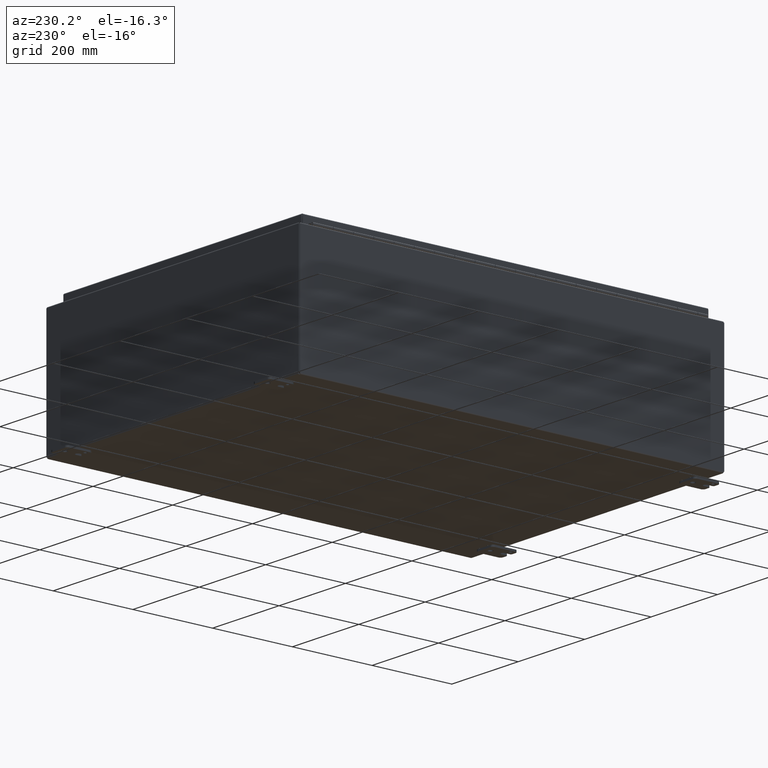
[diagram: clean part render]
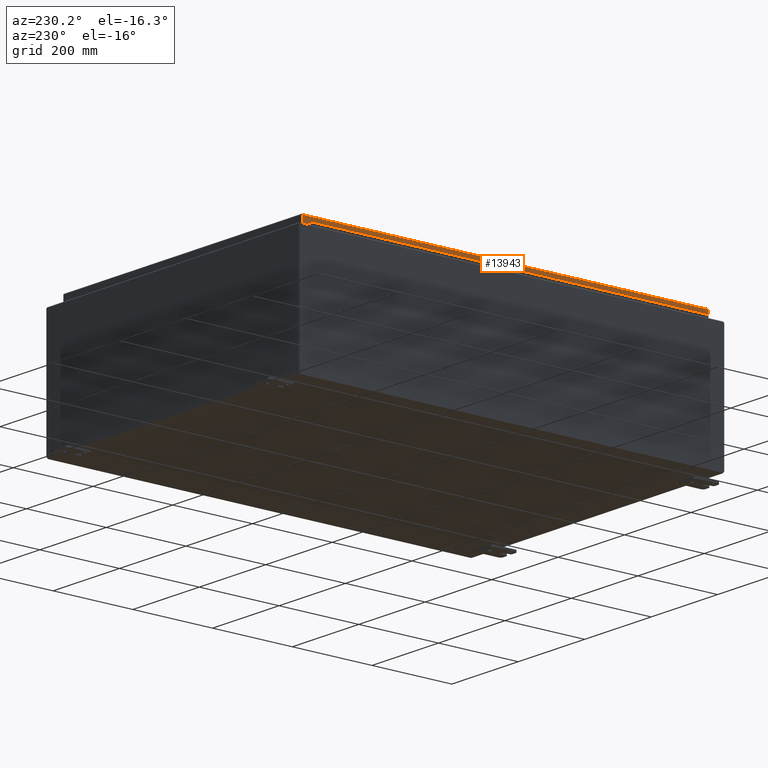
[diagram: same view with one face highlighted and labeled with its STEP entity id]
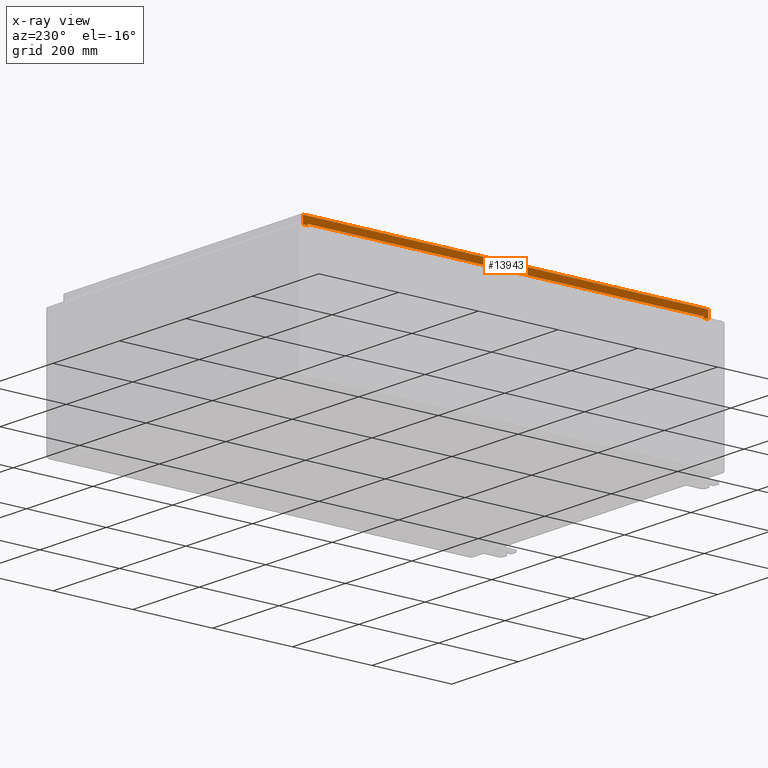
[diagram: x-ray of the same camera — body ghosted, the highlighted face saturated]
A machine part, auxiliary view. The second image highlights one B-rep face of the part: STEP entity #13943.
The next image is the same camera in x-ray: the body ghosted, the highlighted face saturated — about 0% of this face is hidden behind the body in this view.
In plain terms, the highlighted planar face has unit normal (1, 0, 0).
Its self-contained STEP definition (entity closure, byte-faithful):
#11156=CARTESIAN_POINT('',(-14.187500000000005,19.515625000000018,0.75));
#11157=VERTEX_POINT('',#11156);
#11164=CARTESIAN_POINT('',(-14.187499999999996,-19.515625,0.750000000000013));
#11165=VERTEX_POINT('',#11164);
#11166=CARTESIAN_POINT('',(-14.187499999999995,-19.515624999999993,0.750000000000013));
#11167=DIRECTION('',(0.0,1.0,0.0));
#11168=VECTOR('',#11167,39.031250000000014);
#11169=LINE('',#11166,#11168);
#11170=EDGE_CURVE('',#11165,#11157,#11169,.T.);
#11195=CARTESIAN_POINT('',(-14.187499999999998,-19.515625,0.875000000000016));
#11196=VERTEX_POINT('',#11195);
#11197=CARTESIAN_POINT('',(-14.187499999999998,-19.515625,0.875000000000016));
#11198=DIRECTION('',(0.0,0.0,-1.0));
#11199=VECTOR('',#11198,0.125000000000003);
#11200=LINE('',#11197,#11199);
#11201=EDGE_CURVE('',#11196,#11165,#11200,.T.);
#11225=CARTESIAN_POINT('',(-14.187500000000007,19.515625000000018,0.874999999999999));
#11226=VERTEX_POINT('',#11225);
#11233=CARTESIAN_POINT('',(-14.187500000000005,19.515625000000018,0.75));
#11234=DIRECTION('',(0.0,0.0,1.0));
#11235=VECTOR('',#11234,0.124999999999999);
#11236=LINE('',#11233,#11235);
#11237=EDGE_CURVE('',#11157,#11226,#11236,.T.);
#11298=CARTESIAN_POINT('',(-14.187499999999996,-20.008701456543971,0.874999999999996));
#11299=VERTEX_POINT('',#11298);
#11300=CARTESIAN_POINT('',(-14.187499999999996,-20.008701456543974,0.874999999999996));
#11301=DIRECTION('',(0.0,1.0,0.0));
#11302=VECTOR('',#11301,0.493076456543974);
#11303=LINE('',#11300,#11302);
#11304=EDGE_CURVE('',#11299,#11196,#11303,.T.);
#13276=CARTESIAN_POINT('',(-14.187499999999991,-20.008701456543964,0.10525000000001));
#13277=VERTEX_POINT('',#13276);
#13526=CARTESIAN_POINT('',(-14.187499999999996,-20.008701456543967,0.10525));
#13527=DIRECTION('',(0.0,0.0,1.0));
#13528=VECTOR('',#13527,0.769749999999996);
#13529=LINE('',#13526,#13528);
#13530=EDGE_CURVE('',#13277,#11299,#13529,.T.);
#13800=CARTESIAN_POINT('',(-14.187500000000005,20.008701456544006,0.875000000000006));
#13801=VERTEX_POINT('',#13800);
#13808=CARTESIAN_POINT('',(-14.187499999999996,19.515625000000014,0.874999999999996));
#13809=DIRECTION('',(0.0,1.0,0.0));
#13810=VECTOR('',#13809,0.493076456544003);
#13811=LINE('',#13808,#13810);
#13812=EDGE_CURVE('',#11226,#13801,#13811,.T.);
#13839=CARTESIAN_POINT('',(-14.187499999999996,20.008701456543953,0.105249999999991));
#13840=VERTEX_POINT('',#13839);
#13847=CARTESIAN_POINT('',(-14.187500000000005,20.008701456544006,0.875000000000006));
#13848=DIRECTION('',(0.0,0.0,-1.0));
#13849=VECTOR('',#13848,0.769750000000012);
#13850=LINE('',#13847,#13849);
#13851=EDGE_CURVE('',#13801,#13840,#13850,.T.);
#13909=CARTESIAN_POINT('',(-14.1875,20.008701456543953,0.105249999999996));
#13910=DIRECTION('',(0.0,-1.0,0.0));
#13911=VECTOR('',#13910,40.017402913087921);
#13912=LINE('',#13909,#13911);
#13913=EDGE_CURVE('',#13840,#13277,#13912,.T.);
#13928=CARTESIAN_POINT('',(-14.187499999999998,7.463572E-016,0.440008743193612));
#13929=DIRECTION('',(1.0,0.0,0.0));
#13930=DIRECTION('',(0.0,0.0,-1.0));
#13931=AXIS2_PLACEMENT_3D('',#13928,#13929,#13930);
#13932=PLANE('',#13931);
#13933=ORIENTED_EDGE('',*,*,#11237,.T.);
#13934=ORIENTED_EDGE('',*,*,#13812,.T.);
#13935=ORIENTED_EDGE('',*,*,#13851,.T.);
#13936=ORIENTED_EDGE('',*,*,#13913,.T.);
#13937=ORIENTED_EDGE('',*,*,#13530,.T.);
#13938=ORIENTED_EDGE('',*,*,#11304,.T.);
#13939=ORIENTED_EDGE('',*,*,#11201,.T.);
#13940=ORIENTED_EDGE('',*,*,#11170,.T.);
#13941=EDGE_LOOP('',(#13933,#13934,#13935,#13936,#13937,#13938,#13939,#13940));
#13942=FACE_OUTER_BOUND('',#13941,.T.);
#13943=ADVANCED_FACE('',(#13942),#13932,.F.);